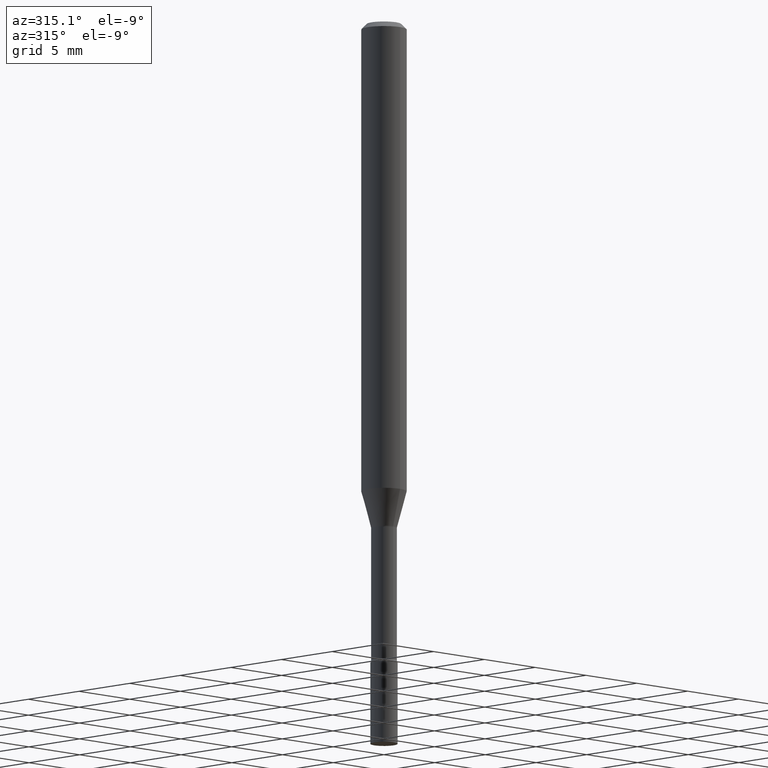
[diagram: clean part render]
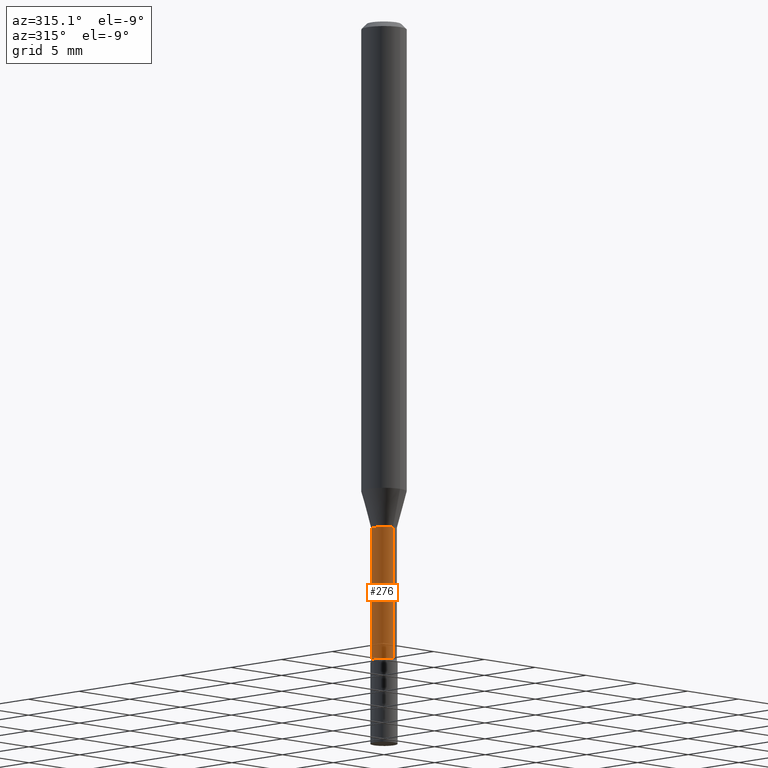
[diagram: same view with one face highlighted and labeled with its STEP entity id]
A machine part, auxiliary view. The second image highlights one B-rep face of the part: STEP entity #276.
In plain terms, the highlighted cylindrical surface (edge-blend (fillet) strip) has radius 0.8954 mm, axis along (-0, 0, 1).
Its self-contained STEP definition (entity closure, byte-faithful):
#11 = DIRECTION ( 'NONE',  ( -6.982962677686265133E-15, -1.000000000000000000, 0.000000000000000000 ) ) ;
#16 = VECTOR ( 'NONE', #444, 39.37007874015748143 ) ;
#31 = DIRECTION ( 'NONE',  ( -2.445457175457371238E-29, 3.491497994707285669E-15, 1.000000000000000000 ) ) ;
#52 = VERTEX_POINT ( 'NONE', #113 ) ;
#54 = ORIENTED_EDGE ( 'NONE', *, *, #413, .F. ) ;
#82 = VERTEX_POINT ( 'NONE', #427 ) ;
#96 = CARTESIAN_POINT ( 'NONE',  ( 2.584599201327798623E-16, 0.03524999999999389733, -1.767098259685360606 ) ) ;
#113 = CARTESIAN_POINT ( 'NONE',  ( 2.504663143554786295E-16, 0.03524999999999509775, -1.401974787463811101 ) ) ;
#127 = CARTESIAN_POINT ( 'NONE',  ( 4.321363118885798981E-29, -6.169820030142171405E-15, -1.767098259685360606 ) ) ;
#197 = AXIS2_PLACEMENT_3D ( 'NONE', #127, #216, #295 ) ;
#216 = DIRECTION ( 'NONE',  ( -2.445457175457371238E-29, 3.491497994707285669E-15, 1.000000000000000000 ) ) ;
#221 = EDGE_CURVE ( 'NONE', #82, #516, #279, .T. ) ;
#236 = CARTESIAN_POINT ( 'NONE',  ( -2.461494343884410751E-16, -0.03525000000000003131, 1.230753043134319234E-16 ) ) ;
#240 = FACE_OUTER_BOUND ( 'NONE', #355, .T. ) ;
#245 = DIRECTION ( 'NONE',  ( -2.445457175457371518E-29, 3.491497994707285669E-15, 1.000000000000000000 ) ) ;
#258 = ORIENTED_EDGE ( 'NONE', *, *, #325, .F. ) ;
#276 = ADVANCED_FACE ( 'NONE', ( #240 ), #363, .T. ) ;
#278 = VECTOR ( 'NONE', #245, 39.37007874015748143 ) ;
#279 = LINE ( 'NONE', #236, #278 ) ;
#293 = LINE ( 'NONE', #441, #16 ) ;
#295 = DIRECTION ( 'NONE',  ( -6.982962677686266711E-15, -1.000000000000000000, 0.000000000000000000 ) ) ;
#302 = DIRECTION ( 'NONE',  ( -2.445457175457371238E-29, 3.491497994707285669E-15, 1.000000000000000000 ) ) ;
#325 = EDGE_CURVE ( 'NONE', #52, #516, #344, .T. ) ;
#327 = CIRCLE ( 'NONE', #197, 0.03525000000000006600 ) ;
#328 = ORIENTED_EDGE ( 'NONE', *, *, #221, .T. ) ;
#338 = EDGE_CURVE ( 'NONE', #403, #82, #327, .T. ) ;
#344 = CIRCLE ( 'NONE', #362, 0.03524999999999999661 ) ;
#355 = EDGE_LOOP ( 'NONE', ( #54, #492, #328, #258 ) ) ;
#362 = AXIS2_PLACEMENT_3D ( 'NONE', #485, #302, #11 ) ;
#363 = CYLINDRICAL_SURFACE ( 'NONE', #448, 0.03525000000000003131 ) ;
#398 = DIRECTION ( 'NONE',  ( -6.982962677686265133E-15, -1.000000000000000000, 3.491497994707285669E-15 ) ) ;
#403 = VERTEX_POINT ( 'NONE', #96 ) ;
#413 = EDGE_CURVE ( 'NONE', #403, #52, #293, .T. ) ;
#427 = CARTESIAN_POINT ( 'NONE',  ( -2.461494343883981315E-16, -0.03525000000000623468, -1.767098259685360606 ) ) ;
#441 = CARTESIAN_POINT ( 'NONE',  ( 2.504663143554354887E-16, 0.03525000000000003131, -1.230753043134319234E-16 ) ) ;
#444 = DIRECTION ( 'NONE',  ( -2.445457175457371518E-29, 3.491497994707285669E-15, 1.000000000000000000 ) ) ;
#448 = AXIS2_PLACEMENT_3D ( 'NONE', #515, #31, #398 ) ;
#453 = CARTESIAN_POINT ( 'NONE',  ( -2.461494343884065624E-16, -0.03525000000000488853, -1.401974787463811101 ) ) ;
#485 = CARTESIAN_POINT ( 'NONE',  ( 3.428469303813700067E-29, -4.894992159060069761E-15, -1.401974787463811101 ) ) ;
#492 = ORIENTED_EDGE ( 'NONE', *, *, #338, .T. ) ;
#515 = CARTESIAN_POINT ( 'NONE',  ( 0.000000000000000000, 0.000000000000000000, 0.000000000000000000 ) ) ;
#516 = VERTEX_POINT ( 'NONE', #453 ) ;